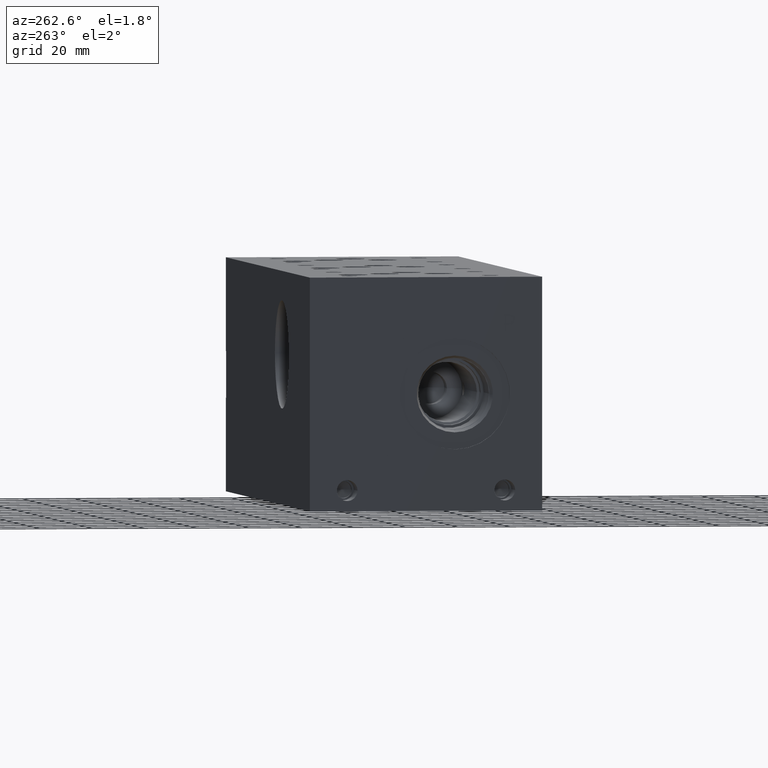
[diagram: clean part render]
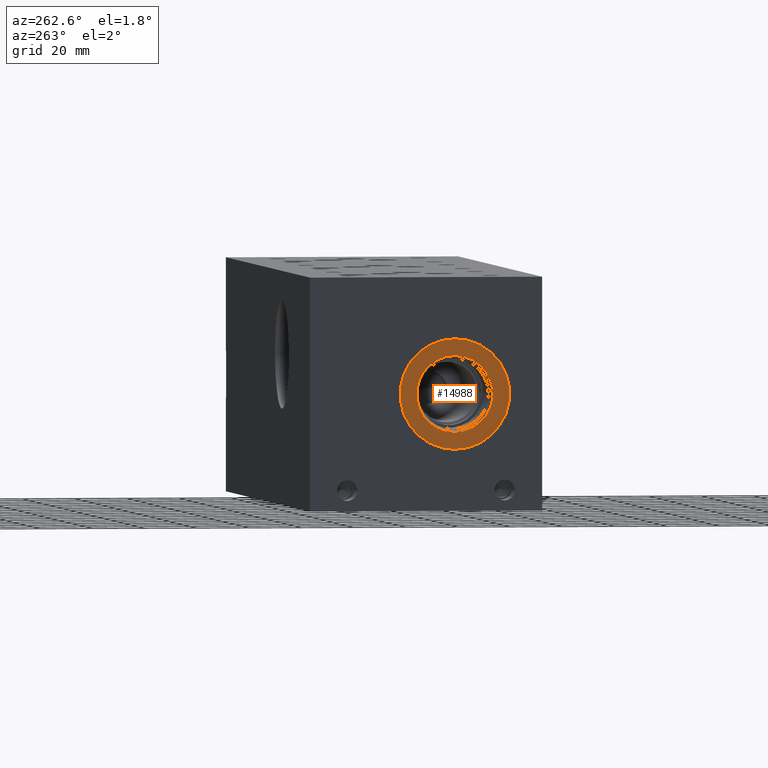
[diagram: same view with one face highlighted and labeled with its STEP entity id]
A machine part, auxiliary view. The second image highlights one B-rep face of the part: STEP entity #14988.
In plain terms, the highlighted planar face has unit normal (1, 0, 0).
Its self-contained STEP definition (entity closure, byte-faithful):
#294=CIRCLE('',#15673,21.0185);
#295=CIRCLE('',#15674,21.0185);
#296=CIRCLE('',#15676,14.5923);
#297=CIRCLE('',#15677,14.5923);
#648=FACE_BOUND('',#2810,.T.);
#1956=FACE_OUTER_BOUND('',#2809,.T.);
#2809=EDGE_LOOP('',(#12548,#12549));
#2810=EDGE_LOOP('',(#12550,#12551));
#6781=VERTEX_POINT('',#25600);
#6782=VERTEX_POINT('',#25602);
#6783=VERTEX_POINT('',#25606);
#6784=VERTEX_POINT('',#25607);
#8788=EDGE_CURVE('',#6781,#6782,#294,.T.);
#8789=EDGE_CURVE('',#6782,#6781,#295,.T.);
#8790=EDGE_CURVE('',#6783,#6784,#296,.T.);
#8791=EDGE_CURVE('',#6784,#6783,#297,.T.);
#12548=ORIENTED_EDGE('',*,*,#8789,.F.);
#12549=ORIENTED_EDGE('',*,*,#8788,.F.);
#12550=ORIENTED_EDGE('',*,*,#8790,.T.);
#12551=ORIENTED_EDGE('',*,*,#8791,.T.);
#13801=PLANE('',#15675);
#14988=ADVANCED_FACE('',(#1956,#648),#13801,.F.);
#15673=AXIS2_PLACEMENT_3D('',#25603,#18282,#18283);
#15674=AXIS2_PLACEMENT_3D('',#25604,#18284,#18285);
#15675=AXIS2_PLACEMENT_3D('',#25605,#18286,#18287);
#15676=AXIS2_PLACEMENT_3D('',#25608,#18288,#18289);
#15677=AXIS2_PLACEMENT_3D('',#25609,#18290,#18291);
#18282=DIRECTION('center_axis',(1.,0.,0.));
#18283=DIRECTION('ref_axis',(0.,0.,-1.));
#18284=DIRECTION('center_axis',(1.,0.,0.));
#18285=DIRECTION('ref_axis',(0.,0.,-1.));
#18286=DIRECTION('center_axis',(1.,0.,0.));
#18287=DIRECTION('ref_axis',(0.,0.,-1.));
#18288=DIRECTION('center_axis',(1.,0.,0.));
#18289=DIRECTION('ref_axis',(0.,0.,-1.));
#18290=DIRECTION('center_axis',(1.,0.,0.));
#18291=DIRECTION('ref_axis',(0.,0.,-1.));
#25600=CARTESIAN_POINT('',(0.7874,33.3248,23.4315));
#25602=CARTESIAN_POINT('',(0.7874,33.3248,65.4685));
#25603=CARTESIAN_POINT('Origin',(0.7874,33.3248,44.45));
#25604=CARTESIAN_POINT('Origin',(0.7874,33.3248,44.45));
#25605=CARTESIAN_POINT('Origin',(0.7874,33.3248,59.0423));
#25606=CARTESIAN_POINT('',(0.7874,33.3248,59.0423));
#25607=CARTESIAN_POINT('',(0.787399999999999,33.3248,29.8577));
#25608=CARTESIAN_POINT('Origin',(0.7874,33.3248,44.45));
#25609=CARTESIAN_POINT('Origin',(0.7874,33.3248,44.45));